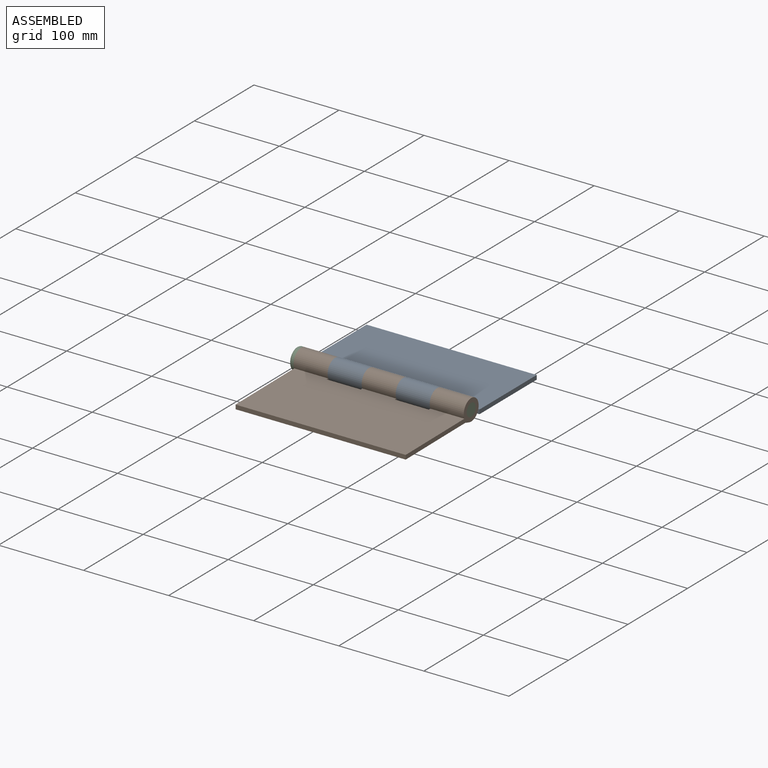
[diagram: assembled view]
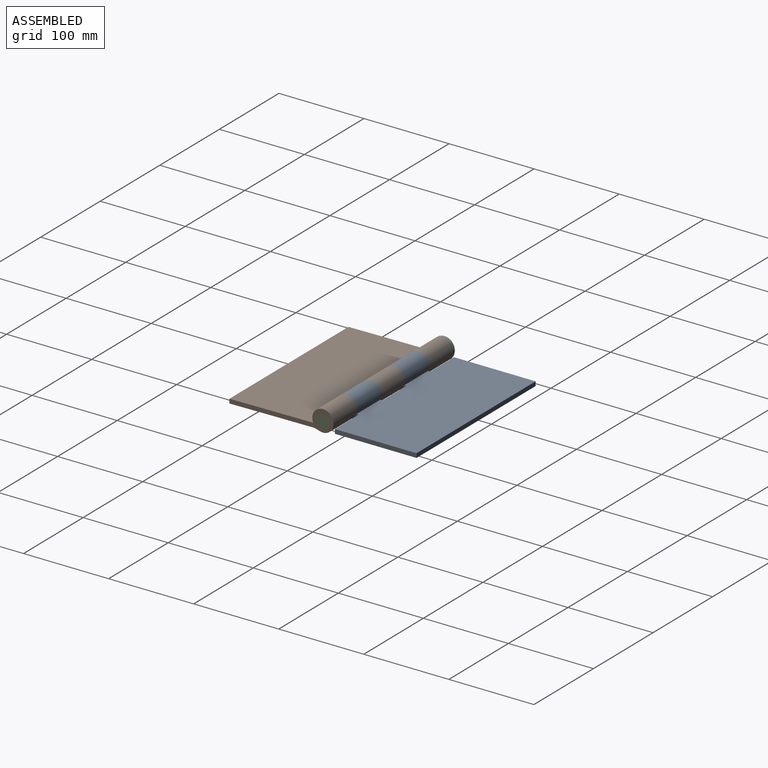
[diagram: assembled view, second angle]
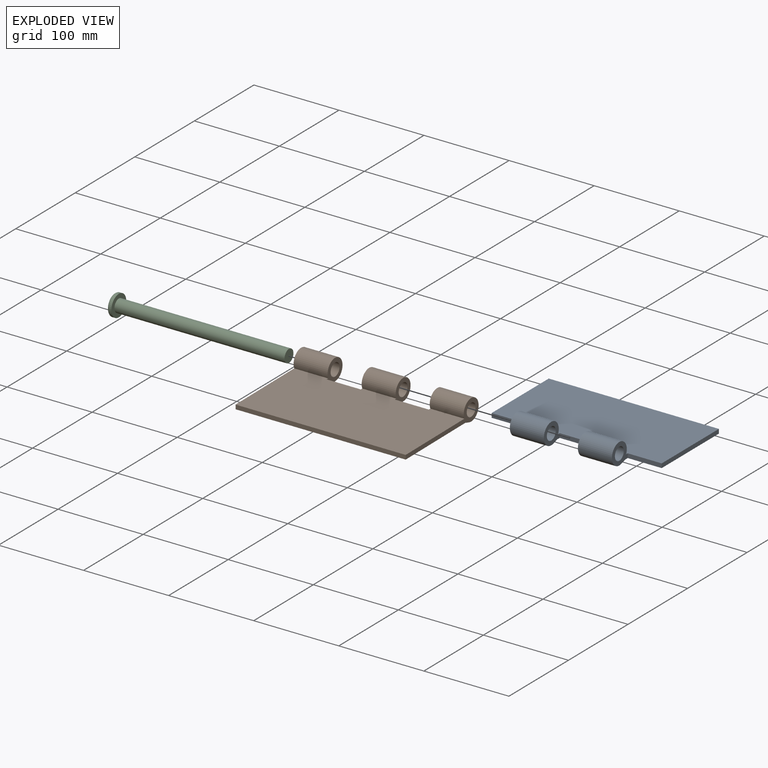
[diagram: exploded view]
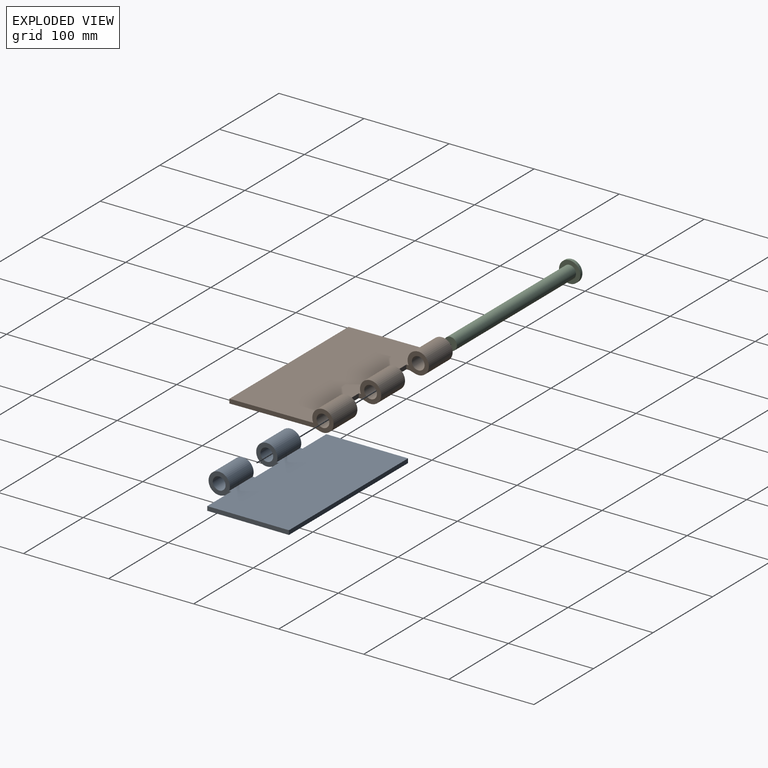
[diagram: exploded view, second angle]
ASSEMBLY  parts=3 mates=2
PART A: 18 faces, bbox 200x122.5x25 mm
  f0: plane 200x98.54mm, normal (0,0,1), area 19403.5mm2, adj f1,f2,f6,f7,f8,f9,f10,f11
  f1: cylinder r=12.5mm len=40mm, axis (-1,0,0), area 2711.3mm2, adj f0,f3,f11,f15
  f2: cylinder r=12.5mm len=40mm, axis (-1,0,0), area 2711.3mm2, adj f0,f4,f10,f13
  f3: plane 40x6.32mm, normal (0,0.29,-0.96), area 264.6mm2, adj f1,f5,f11,f15
  f4: plane 40x6.32mm, normal (0,0.29,-0.96), area 264.6mm2, adj f2,f5,f10,f13
  f5: plane 200x100mm, normal (0,0,-1), area 19520mm2, adj f3,f4,f6,f7,f8,f9,f10,f11
  f6: plane 96x5mm, normal (1,0,0), area 480mm2, adj f0,f5,f8,f16
  f7: plane 96x5mm, normal (-1,0,0), area 480mm2, adj f0,f5,f8,f14
  f8: plane 200x5mm, normal (0,1,0), area 1000mm2, adj f0,f5,f6,f7
  f9: plane 40x5mm, normal (0,-1,0), area 200mm2, adj f0,f5,f10,f11
  f10: plane 26.5x25mm, normal (1,0,0), area 336.9mm2, adj f0,f2,f4,f5,f9,f12
  f11: plane 26.5x25mm, normal (-1,0,0), area 336.9mm2, adj f0,f1,f3,f5,f9,f17
  f12: cylinder r=7.5mm len=40mm, axis (-1,0,0), area 1885mm2, adj f10,f13
  f13: plane 26.5x25mm, normal (-1,0,0), area 336.9mm2, adj f0,f2,f4,f5,f12,f14
  f14: plane 40x5mm, normal (0,-1,0), area 200mm2, adj f0,f5,f7,f13
  f15: plane 26.5x25mm, normal (1,0,0), area 336.9mm2, adj f0,f1,f3,f5,f16,f17
  f16: plane 40x5mm, normal (0,-1,0), area 200mm2, adj f0,f5,f6,f15
  f17: cylinder r=7.5mm len=40mm, axis (-1,0,0), area 1885mm2, adj f11,f15
PART B: 20 faces, bbox 200x122.5x25 mm
  f0: cylinder r=12.5mm len=40mm, axis (-1,0,0), area 2711.3mm2, adj f2,f5,f12,f17
  f1: cylinder r=12.5mm len=40mm, axis (-1,0,0), area 2711.3mm2, adj f2,f6,f14,f18
  f2: plane 200x98.54mm, normal (0,0,1), area 19505.2mm2, adj f0,f1,f7,f8,f11,f12,f13,f14
  f3: plane 200x100mm, normal (0,0,-1), area 19680mm2, adj f5,f6,f8,f10,f11,f12,f13,f14
  f4: cylinder r=7.5mm len=40mm, axis (-1,0,0), area 1885mm2, adj f12,f17
  f5: plane 40x6.32mm, normal (0,-0.29,-0.96), area 264.6mm2, adj f0,f3,f12,f17
  f6: plane 40x6.32mm, normal (0,-0.29,-0.96), area 264.6mm2, adj f1,f3,f14,f18
  f7: cylinder r=12.5mm len=40mm, axis (-1,0,0), area 2711.3mm2, adj f2,f10,f11,f15
  f8: plane 200x5mm, normal (0,-1,0), area 1000mm2, adj f2,f3,f11,f12
  f9: cylinder r=7.5mm len=40mm, axis (-1,0,0), area 1885mm2, adj f11,f15
  f10: plane 40x6.32mm, normal (0,-0.29,-0.96), area 264.6mm2, adj f3,f7,f11,f15
  f11: plane 122.5x25mm, normal (1,0,0), area 816.9mm2, adj f2,f3,f7,f8,f9,f10
  f12: plane 122.5x25mm, normal (-1,0,0), area 816.9mm2, adj f0,f2,f3,f4,f5,f8
  f13: plane 40x5mm, normal (0,1,0), area 200mm2, adj f2,f3,f14,f15
  f14: plane 26.5x25mm, normal (1,0,0), area 336.9mm2, adj f1,f2,f3,f6,f13,f19
  f15: plane 26.5x25mm, normal (-1,0,0), area 336.9mm2, adj f2,f3,f7,f9,f10,f13
  f16: plane 40x5mm, normal (0,1,0), area 200mm2, adj f2,f3,f17,f18
  f17: plane 26.5x25mm, normal (1,0,0), area 336.9mm2, adj f0,f2,f3,f4,f5,f16
  f18: plane 26.5x25mm, normal (-1,0,0), area 336.9mm2, adj f1,f2,f3,f6,f16,f19
  f19: cylinder r=7.5mm len=40mm, axis (-1,0,0), area 1885mm2, adj f14,f18
PART C: 6 faces, bbox 205x27.1x27.1 mm
  f0: cylinder r=7.5mm len=200mm, axis (-1,0,0), area 9424.8mm2, adj f1,f4
  f1: plane 15x15mm, normal (1,0,0), area 176.7mm2, adj f0
  f2: cylinder r=12.5mm len=25mm, axis (1,0,0), area 235.6mm2, adj f4,f5
  f3: plane 21x21mm, normal (-1,0,0), area 346.4mm2, adj f5
  f4: plane 25x25mm, normal (1,0,0), area 314.2mm2, adj f0,f2
  f5: torus R=10.5mm, axis (1,0,0), area 232.4mm2, adj f2,f3
PLACE A t=(-83.07,13.57,8.83)mm fixed
PLACE B rot(axis=(1,0,0),0.5deg) t=(-83.07,153.22,9.47)mm
PLACE C rot(axis=(1,0,0),0.5deg) t=(-83.07,83.82,9.71)mm
MATE fastened B.f0 <-> C.f0  axis (1,0,0) through (116.93,-16.22,34.13)mm
MATE revolute A.f1 <-> B.f0  axis (1,0,0) through (-3.07,-16.22,34.13)mm
